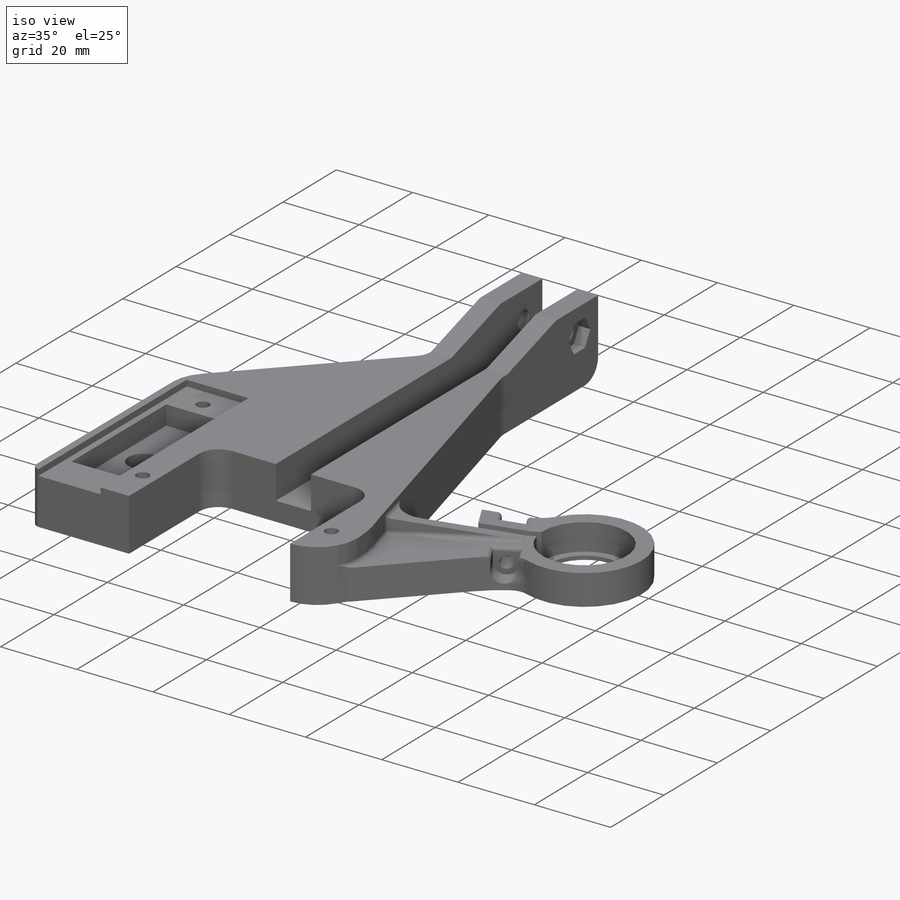
[diagram: iso view]
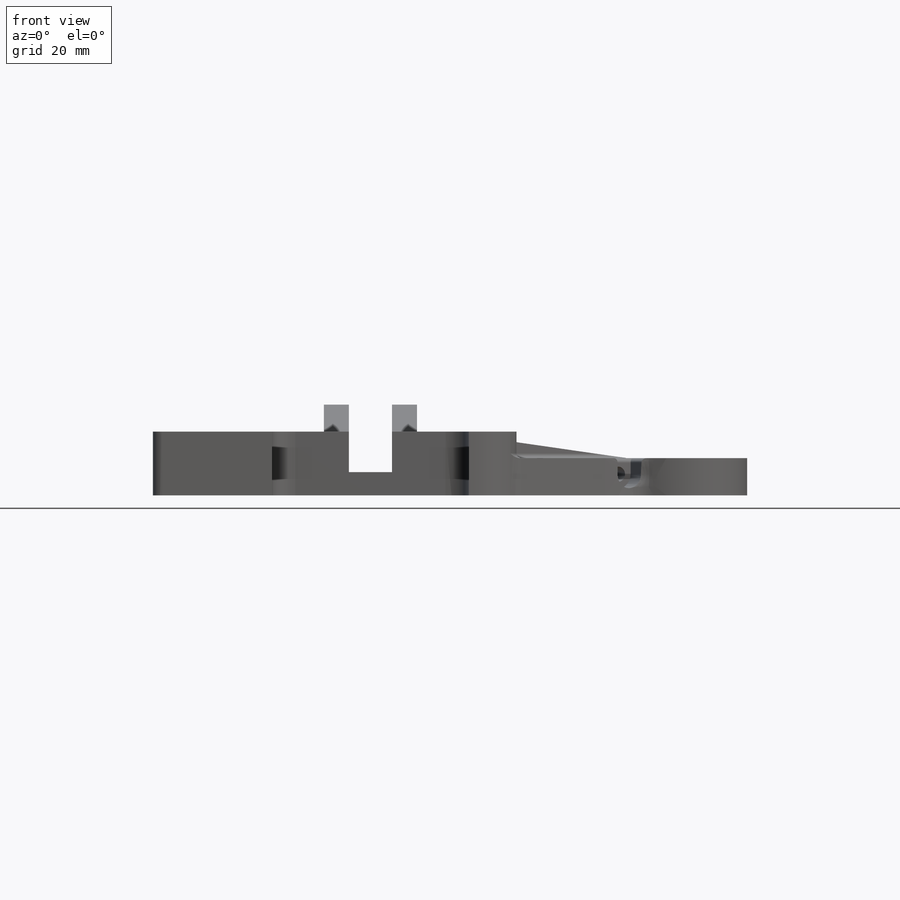
[diagram: front view]
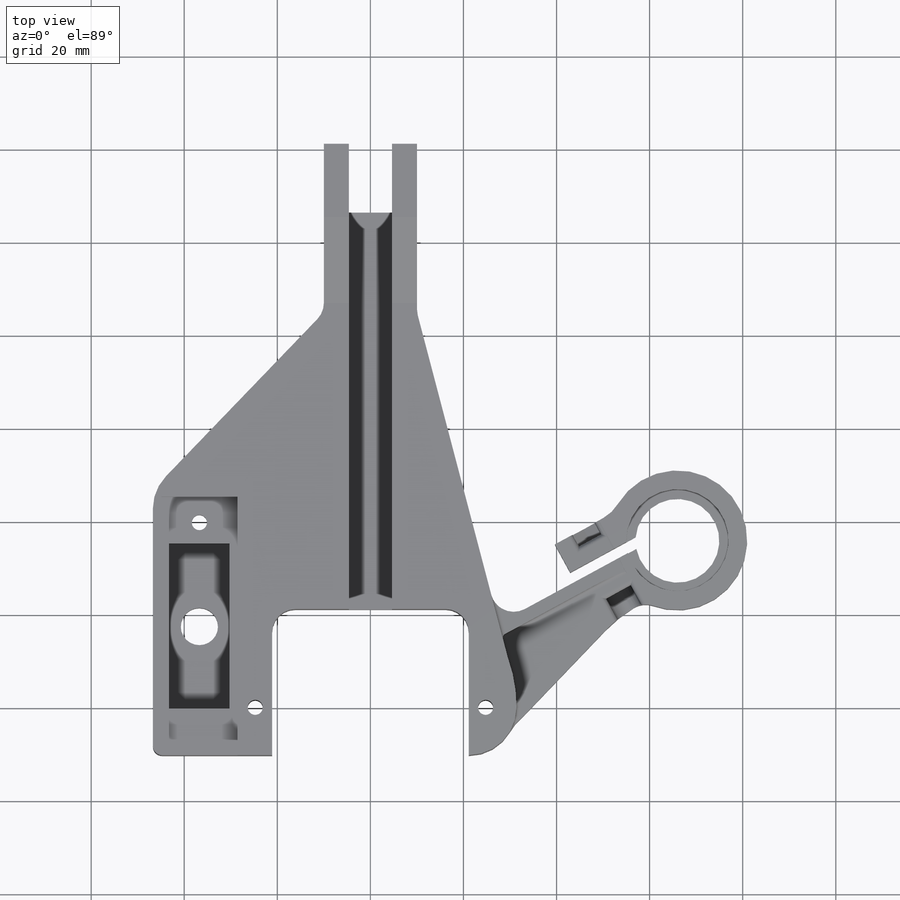
[diagram: top view]
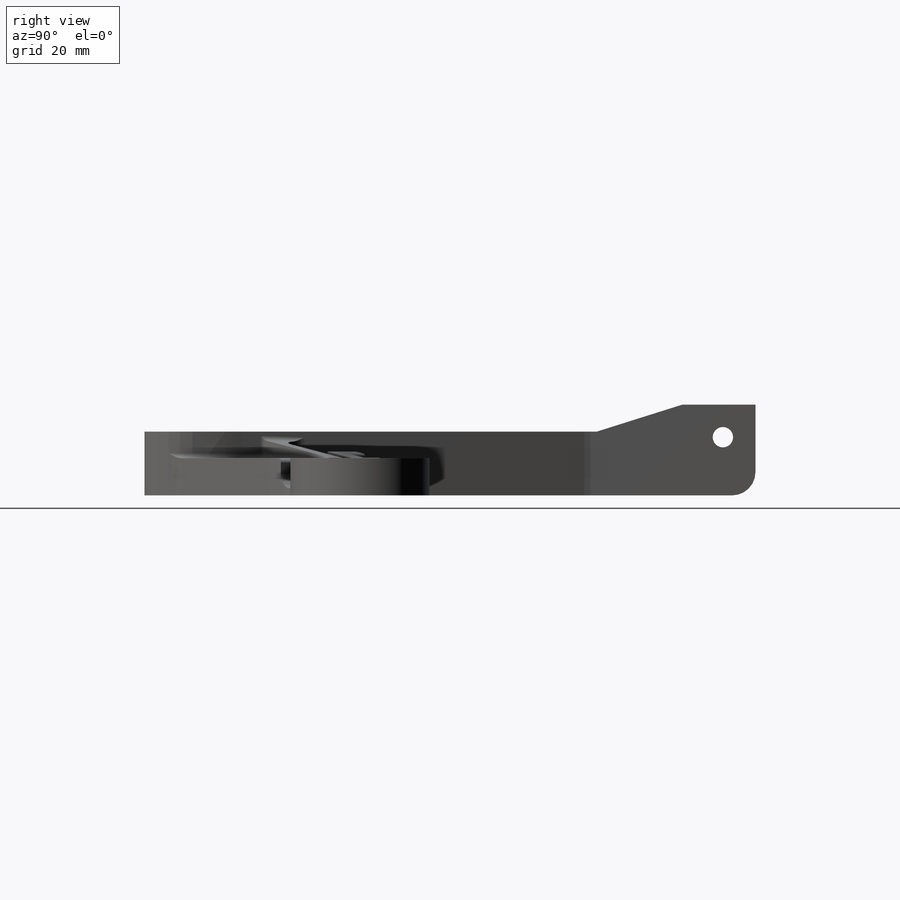
[diagram: right view]
SOLIDWORKS PART (.sldprt)
format: sldprt  version: not decoded by parser v0  size: 4,821,504 bytes
history: native  units: mm
features: sketch x168, cut_extrude x89, extrude x70, fillet x25, chamfer x9, plane x7, mirror x3, pattern_linear x2, material x1 (+13 scaffold rows collapsed)
feature tree (387):
  scaffold x13  (default folders/planes/origin — collapsed)
  material  "Material <not specified>"
  sketch  "Sketch1"  dims[c1.D1=56.8mm c1.D5=100.0mm c1.D2=~63.041403mm c1.D3=~63.864398mm c2.D2=57.0mm c2.D3=57.0mm c2.D4=10.0mm]
  extrude  "Boss-Extrude1"  Depth=2mm
  sketch  "Sketch2"  dims[c1.D1=~57.791593mm c1.D2=~56.321357mm c2.D1=57.0mm c2.D2=57.0mm c2.D3=0.0mm]
  extrude  "Boss-Extrude2"  Depth=2mm
  sketch  "Sketch3"  dims[c1.D1=5.5mm c1.D2=5.5mm c1.D4=~4.235811mm c1.D5=~4.235811mm c1.D6=5.5mm c1.D7=5.5mm c1.D8=5.5mm c1.D9=5.5mm c1.D10=5.5mm c1.D11=5.5mm c1.D12=5.5mm c2.D2=5.0mm c2.D3=5.0mm c2.D4=5.0mm c2.D5=5.0mm c2.D8=5.0mm c2.D9=5.0mm c2.D11=5.0mm c2.D12=5.0mm]
  cut_extrude  "Cut-Extrude1"  [1 undecoded]
  sketch  "Sketch4"  dims[c1.D1=~4.158256mm c1.D2=~12.21427mm c2.D1=5.0mm c2.D2=10.0mm c2.D3=~17.851258mm]
  cut_extrude  "Cut-Extrude2"  [1 undecoded]
  sketch  "Sketch5"  dims[c1.D1=100.0mm c1.D2=114.3mm c2.D1=~10.372506mm c2.D3=125.0mm]
  sketch  "Sketch6"  dims[D1=4.625mm D2=5.38mm D3=15.0mm D4=~47.143267mm D5=~114.296535mm D6=10.0mm]
  extrude  "Boss-Extrude3"  Depth=19.5mm
  sketch  "Sketch7"  dims[c1.D1=~5.171546mm c1.D2=~5.171546mm c1.D3=4.38mm c2.D1=12.5mm c2.D2=7.0mm]
  cut_extrude  "Cut-Extrude3"  [1 undecoded]
  sketch  "Sketch8"  dims[D1=7.13mm]
  cut_extrude  "Cut-Extrude4"  Depth=3mm
  sketch  "Sketch9"  dims[D1=6.7mm]
  cut_extrude  "Cut-Extrude5"  Depth=3mm
  fillet  "Fillet1"  Radius=5mm
  plane  "Plane1"  Offset=45mm
  sketch  "Sketch10"  dims[D1=0.0mm D2=0.0mm D3=0.0mm D4=0.0mm D5=0.0mm D6=0.0mm]
  sketch  "Sketch12"  dims[D1=0.0mm]
  cut_extrude  "Cut-Extrude6"  Depth=3mm
  sketch  "Sketch13"  dims[D1=~24.068737mm]
  sketch  "Sketch14"  dims[D2=5.5mm D3=5.5mm D4=5.5mm D5=6.75mm D1=0.0mm]
  extrude  "Boss-Extrude4"  Depth=3mm
  sketch  "Sketch15"
  extrude  "Boss-Extrude5"  Depth=3mm
  sketch  "Sketch16"  dims[D1=69.8mm]
  sketch  "Sketch17"  dims[D1=~29.299301mm D2=~102.533477mm]
  cut_extrude  "Cut-Extrude7"  Depth=45mm
  sketch  "Sketch18"  dims[c1.D3=~6.678894mm c1.D2=7.5mm c1.D4=28.4mm c1.D1=15.0mm c2.D2=~33.234019mm c2.D3=~5.842232mm c2.D5=15.0mm c2.D6=4.0]
  extrude  "Boss-Extrude9"  Depth=42mm
  fillet  "Fillet2"  Radius=10mm
  sketch  "Sketch19"  dims[D1=10.0mm]
  extrude  "Boss-Extrude10"  [1 undecoded]
  sketch  "Sketch20"  dims[D1=0.0mm D2=0.0mm]
  cut_extrude  "Cut-Extrude8"  [1 undecoded]
  sketch  "Sketch21"  dims[c1.D1=10.0mm c1.D2=10.0mm c1.D3=~8.09568mm c1.D4=~11.358339mm c2.D3=~6.043986mm c2.D5=~66.945024mm c3.D5=~21.622725deg c3.D3=10.0mm c3.D4=10.0mm]
  cut_extrude  "Cut-Extrude9"  Depth=42mm
  sketch  "Sketch22"  dims[c1.D1=56.8mm c1.D3=56.8mm c1.D2=~19.791948mm c2.D2=~65.704305deg c2.D1=5.0mm]
  extrude  "Boss-Extrude11"  Depth=5mm
  sketch  "Sketch23"  dims[c1.D1=5.0mm c1.D2=5.0mm c2.D1=5.0mm c2.D2=5.0mm c2.D3=5.0mm]
  cut_extrude  "Cut-Extrude10"  [1 undecoded]
  sketch  "Sketch24"  dims[c1.D6=33.4mm c1.D8=33.4mm c1.D1=~85.487345mm c2.D1=45.0deg c2.D2=~2.796269mm c2.D3=8.5mm c2.D4=5.0mm c2.D5=~13.056691mm c2.D7=7.5mm c2.D8=~33.97112mm c2.D9=~3.844393mm c2.D10=~9.232475mm c3.D10=135.0deg c3.D11=~4.169841mm c3.D1=~8.056691mm c4.D1=45.0deg c4.D2=5.0mm c4.D3=~8.056691mm c5.D2=1.0mm]
  extrude  "Boss-Extrude12"  [1 undecoded]
  sketch  "Sketch25"  dims[c1.D4=1.625mm c1.D2=3.25mm c1.D3=20.0mm c2.D4=20.0mm c2.D1=0.0mm]
  cut_extrude  "Cut-Extrude11"  [1 undecoded]
  sketch  "Sketch26"  dims[D1=5.0mm]
  extrude  "Boss-Extrude13"  Depth=2mm
  sketch  "Sketch27"  dims[D1=0.0mm]
  extrude  "Boss-Extrude14"  Depth=2mm
  sketch  "Sketch28"  dims[D1=0.0mm]
  cut_extrude  "Cut-Extrude12"  Depth=2mm
  sketch  "Sketch29"  dims[D1=0.0mm]
  extrude  "Boss-Extrude15"  [1 undecoded]
  sketch  "Sketch30"  dims[D1=0.0mm D2=0.0mm]
  extrude  "Boss-Extrude16"  [1 undecoded]
  sketch  "Sketch31"  dims[c1.D1=5.0mm c1.D2=5.0mm c2.D1=10.0mm]
  extrude  "Boss-Extrude17"  [1 undecoded]
  sketch  "Sketch32"  dims[D1=~35.173935mm D2=~181.231273mm]
  cut_extrude  "Cut-Extrude13"  Depth=10mm
  sketch  "Sketch33"  dims[c1.D1=~6.752159mm c1.D2=~13.400455mm c2.D1=1.5mm c2.D2=1.5mm]
  cut_extrude  "Cut-Extrude14"  [1 undecoded]
  sketch  "Sketch34"  dims[c1.D1=~10.172356mm c1.D2=~12.301049mm c2.D1=~17.607699mm c2.D2=~9.796867mm]
  extrude  "Boss-Extrude18"  [1 undecoded]
  sketch  "Sketch35"  dims[D1=5.0mm D2=5.0mm]
  extrude  "Boss-Extrude19"  [1 undecoded]
  sketch  "Sketch36"  dims[D1=3.25mm]
  extrude  "Boss-Extrude20"  [1 undecoded]
  sketch  "Sketch37"  dims[D1=1.5mm D2=1.5mm D3=1.5mm D4=1.5mm]
  cut_extrude  "Cut-Extrude15"  Depth=10mm
  chamfer  "Chamfer1"  Distance=1.5mm Angle=45deg
  sketch  "Sketch38"  dims[c1.D4=10.0mm c1.D5=8.0mm c1.D1=~34.54848mm c2.D1=45.0deg c2.D5=10.0mm c2.D6=10.0mm c2.D2=7.5mm c2.D3=7.5mm]
  extrude  "Boss-Extrude21"  [1 undecoded]
  sketch  "Sketch39"  dims[D1=12.75mm]
  cut_extrude  "Cut-Extrude16"  Depth=5mm
  sketch  "Sketch40"  dims[c1.D1=3.0mm c1.D3=~71.309462mm c1.D4=77.0mm c2.D3=~74.05391mm c2.D4=~81.274208mm c2.D2=5.0mm]
  cut_extrude  "Cut-Extrude17"  [1 undecoded]
  sketch  "Sketch41"  dims[D1=~23.355905mm D2=13.0mm]
  cut_extrude  "Cut-Extrude18"  [1 undecoded]
  sketch  "Sketch42"  dims[D1=~60.213936mm]
  extrude  "Boss-Extrude22"  [1 undecoded]
  sketch  "Sketch43"  dims[D1=0.0mm D2=0.0mm]
  extrude  "Boss-Extrude23"  Depth=5mm
  sketch  "Sketch46"  dims[c1.D1=~11.964372mm c1.D2=13.0mm c2.D1=5.0mm c2.D2=10.25mm c2.D3=3.0mm c3.D2=~2.984343mm]
  extrude  "Boss-Extrude24"  [1 undecoded]
  sketch  "Sketch44"  dims[D1=3.25mm]
  cut_extrude  "Cut-Extrude19"  [1 undecoded]
  sketch  "Sketch47"  dims[D1=6.0mm]
  cut_extrude  "Cut-Extrude20"  Depth=1mm
  sketch  "Sketch48"  dims[D1=5.65mm]
  cut_extrude  "Cut-Extrude21"  Depth=1mm
  fillet  "Fillet3"  Radius=5mm
  fillet  "Fillet4"  Radius=20mm
  sketch  "Sketch49"  dims[D1=~110.006866mm]
  cut_extrude  "Cut-Extrude22"  [1 undecoded]
  sketch  "Sketch50"  dims[D1=~100.249902mm]
  cut_extrude  "Cut-Extrude23"  [1 undecoded]
  sketch  "Sketch52"  dims[D3=~7.14427mm D1=0.0mm D2=0.0mm]
  extrude  "Boss-Extrude25"  [1 undecoded]
  plane  "Plane2"  Offset=10mm
  sketch  "Sketch53"  dims[D1=~21.378949mm]
  extrude  "Boss-Extrude26"  Depth=5mm
  fillet  "Fillet5"  Radius=14mm
  sketch  "Sketch54"  dims[D2=~67.802345mm D3=~42.597424mm D1=1.0mm]
  cut_extrude  "Cut-Extrude24"  [1 undecoded]
  sketch  "Sketch57"  dims[D1=2.69mm D2=2.69mm]
  extrude  "Boss-Extrude29"  [1 undecoded]
  sketch  "Sketch58"  dims[c1.D3=30.0mm c1.D1=~16.965701mm c2.D1=~9.643539deg c2.D2=~30.048959mm c3.D2=~26.259854deg]
  extrude  "Boss-Extrude30"  Depth=5mm
  fillet  "Fillet11"  Radius=14mm
  sketch  "Sketch59"  dims[D1=~3.46625mm]
  cut_extrude  "Cut-Extrude25"  Depth=2mm
  sketch  "Sketch60"  dims[c1.D4=3.0mm c1.D6=8.0mm c1.D1=25.0mm c1.D2=41.5mm c2.D1=41.5mm c2.D2=25.0mm c2.D3=20.0mm c2.D4=49.5mm c2.D5=24.75mm c2.D6=~18.610132mm c3.D3=1.0mm]
  sketch  "Sketch61"
  cut_extrude  "Cut-Extrude26"  Depth=1.6mm
  sketch  "Sketch62"  dims[D1=~14.486213mm]
  extrude  "Boss-Extrude31"  [1 undecoded]
  sketch  "Sketch63"
  cut_extrude  "Cut-Extrude27"  Depth=16mm
  sketch  "Sketch64"  dims[D1=0.0mm]
  cut_extrude  "Cut-Extrude28"  Depth=1.5mm
  sketch  "Sketch65"  dims[D1=0.0mm]
  cut_extrude  "Cut-Extrude29"  Depth=1.5mm
  sketch  "Sketch66"  dims[D1=0.0mm D2=0.0mm]
  extrude  "Boss-Extrude32"  [1 undecoded]
  sketch  "Sketch67"  dims[D1=0.0mm D2=0.0mm]
  extrude  "Boss-Extrude33"  [1 undecoded]
  sketch  "Sketch68"  dims[D1=0.0mm]
  cut_extrude  "Cut-Extrude30"  [1 undecoded]
  sketch  "Sketch69"  dims[c1.D5=8.0mm c1.D3=4.0mm c1.D4=4.0mm c1.D2=5.0mm c1.D8=5.0mm c1.D9=5.0mm c1.D1=~41.862394mm c2.D2=~44.075339mm c2.D1=49.5mm c3.D2=23.0mm c3.D3=~54.374654mm c3.D1=46.5mm c4.D2=27.5mm c4.D1=24.75mm c4.D7=24.75mm c4.D3=4.0mm c4.D4=4.0mm c4.D5=10.0mm c4.D6=1.5mm]
  extrude  "Boss-Extrude34"  [1 undecoded]
  sketch  "Sketch70"  dims[D1=3.0mm]
  sketch  "Sketch71"  dims[c1.D1=8.0mm c1.D4=4.0mm c1.D5=4.0mm c2.D1=8.0mm c2.D2=8.0mm c3.D1=8.0mm c3.D2=8.0mm c4.D1=8.0mm c4.D2=8.0mm c4.D3=8.0mm]
  cut_extrude  "Cut-Extrude32"  Depth=1.6mm
  sketch  "Sketch72"  dims[D1=3.0mm]
  extrude  "Boss-Extrude35"  [1 undecoded]
  sketch  "Sketch73"  dims[c1.D1=55.1183mm c1.D2=20.01mm c2.D1=~3.994407mm]
  cut_extrude  "Cut-Extrude33"  [1 undecoded]
  sketch  "Sketch74"  dims[D1=~40.563324mm]
  cut_extrude  "Cut-Extrude34"  [1 undecoded]
  sketch  "Sketch75"  dims[D2=0.75mm D1=0.75mm]
  extrude  "Boss-Extrude36"  [1 undecoded]
  chamfer  "Chamfer2"  Distance=5mm Angle=45deg
  sketch  "Sketch76"  dims[D4=~2.303098mm D1=0.75mm D2=0.75mm D3=0.75mm]
  extrude  "Boss-Extrude37"  Depth=7mm
  sketch  "Sketch77"  dims[D2=~8.651339mm D1=0.75mm]
  extrude  "Boss-Extrude38"  [1 undecoded]
  chamfer  "Chamfer3"  Distance=5mm Angle=45deg
  sketch  "Sketch78"  dims[D1=0.75mm]
  extrude  "Boss-Extrude39"  [1 undecoded]
  sketch  "Sketch79"  dims[D1=2.0mm]
  extrude  "Boss-Extrude40"  [1 undecoded]
  sketch  "Sketch80"  dims[D1=22.0mm]
  cut_extrude  "Cut-Extrude35"  [1 undecoded]
  sketch  "Sketch81"  dims[D1=~1.307116mm]
  cut_extrude  "Cut-Extrude36"  [1 undecoded]
  sketch  "Sketch82"  dims[D1=2.0mm]
  extrude  "Boss-Extrude41"  Depth=10.5mm
  chamfer  "Chamfer4"  Distance=2mm Angle=30deg
  sketch  "Sketch83"  dims[D1=~28.905686mm]
  cut_extrude  "Cut-Extrude37"  Depth=20mm
  sketch  "Sketch84"  dims[D1=5.38mm]
  cut_extrude  "Cut-Extrude38"  Depth=2.5mm
  sketch  "Sketch85"  dims[D1=~31.145384mm]
  cut_extrude  "Cut-Extrude39"  [1 undecoded]
  sketch  "Sketch86"  dims[D1=~7.401908mm D2=~39.85394mm]
  cut_extrude  "Cut-Extrude40"  [1 undecoded]
  sketch  "Sketch87"  dims[D1=~25.784544mm]
  cut_extrude  "Cut-Extrude41"  Depth=20mm
  sketch  "Sketch88"  dims[D1=0.0mm]
  extrude  "Boss-Extrude42"  [1 undecoded]
  sketch  "Sketch89"  dims[D1=0.0mm]
  extrude  "Boss-Extrude43"  [1 undecoded]
  sketch  "Sketch90"  dims[D1=0.0mm]
  cut_extrude  "Cut-Extrude42"  Depth=7mm
  sketch  "Sketch91"  dims[D1=0.0mm]
  cut_extrude  "Cut-Extrude43"  [1 undecoded]
  plane  "Plane3"  Offset=8mm
  sketch  "Sketch92"
  cut_extrude  "Cut-Extrude44"  Depth=10mm
  sketch  "Sketch96"  dims[c1.D1=~4.156302mm c1.D2=~8.611064mm c2.D1=~2.798864mm]
  extrude  "Boss-Extrude45"  [1 undecoded]
  sketch  "Sketch97"  dims[D2=~2.248637mm D1=0.0mm]
  cut_extrude  "Cut-Extrude45"  Depth=10mm
  sketch  "Sketch98"  dims[D2=~32.419669mm D1=0.0mm]
  cut_extrude  "Cut-Extrude46"  [1 undecoded]
  fillet  "Fillet12"  Radius=10mm
  sketch  "Sketch101"  dims[D1=0.0mm]
  extrude  "Boss-Extrude46"  [1 undecoded]
  sketch  "Sketch102"  dims[D1=0.0mm]
  cut_extrude  "Cut-Extrude47"  [1 undecoded]
  sketch  "Sketch103"  dims[D1=0.0mm]
  cut_extrude  "Cut-Extrude48"  [1 undecoded]
  sketch  "Sketch104"  dims[D1=0.0mm]
  cut_extrude  "Cut-Extrude49"  Depth=10mm
  sketch  "Sketch105"  dims[D1=0.0mm]
  cut_extrude  "Cut-Extrude50"  [1 undecoded]
  sketch  "Sketch108"  dims[D1=0.0mm]
  extrude  "Boss-Extrude47"  Depth=2mm
  sketch  "Sketch109"  dims[D1=2.0mm]
  extrude  "Boss-Extrude52"  Depth=1mm
  plane  "Plane4"  Offset=10mm
  sketch  "Sketch112"  dims[D3=~8.052558mm D1=0.0mm D2=0.0mm]
  cut_extrude  "Cut-Extrude57"  [1 undecoded]
  sketch  "Sketch113"  dims[D2=~2.044276mm D1=0.0mm]
  extrude  "Boss-Extrude50"  [1 undecoded]
  sketch  "Sketch114"  dims[D1=0.0mm]
  cut_extrude  "Cut-Extrude58"  [1 undecoded]
  sketch  "Sketch118"
  sketch  "Sketch120"  dims[D1=0.0mm]
  cut_extrude  "Cut-Extrude62"  [1 undecoded]
  sketch  "Sketch123"  dims[c1.D1=3.0mm c1.D2=3.0mm c2.D1=~4.554448mm c2.D2=4.55mm]
  cut_extrude  "Cut-Extrude64"  [1 undecoded]
  sketch  "Sketch124"  dims[D1=5.45mm]
  cut_extrude  "Cut-Extrude65"  Depth=2.5mm
  sketch  "Sketch126"  dims[D1=6.25mm]
  cut_extrude  "Cut-Extrude66"  Depth=5mm
  sketch  "Sketch127"  dims[D2=~5.129336mm D1=0.0mm]
  extrude  "Boss-Extrude53"  [1 undecoded]
  sketch  "Sketch128"
  cut_extrude  "Cut-Extrude67"  [1 undecoded]
  sketch  "Sketch129"  dims[D1=0.0mm]
  extrude  "Boss-Extrude54"  [1 undecoded]
  sketch  "Sketch130"
  extrude  "Boss-Extrude55"  [1 undecoded]
  sketch  "Sketch131"
  cut_extrude  "Cut-Extrude68"  [1 undecoded]
  sketch  "Sketch132"  dims[D1=42.25mm D2=42.25mm]
  cut_extrude  "Cut-Extrude69"  [1 undecoded]
  sketch  "Sketch133"  dims[D1=0.0mm]
  cut_extrude  "Cut-Extrude70"  [1 undecoded]
  sketch  "Sketch134"
  cut_extrude  "Cut-Extrude71"  [1 undecoded]
  sketch  "Sketch135"
  cut_extrude  "Cut-Extrude72"  Depth=10mm
  sketch  "Sketch136"
  extrude  "Boss-Extrude56"  [1 undecoded]
  fillet  "Fillet13"  Radius=5mm
  fillet  "Fillet14"  Radius=5mm
  sketch  "Sketch137"
  extrude  "Boss-Extrude57"  [1 undecoded]
  fillet  "Fillet15"  Radius=10mm
  fillet  "Fillet16"  Radius=10mm
  sketch  "Sketch138"
  extrude  "Boss-Extrude58"  [1 undecoded]
  sketch  "Sketch139"
  cut_extrude  "Cut-Extrude73"  [1 undecoded]
  sketch  "Sketch140"  dims[c1.D2=~3.138708mm c1.D3=3.25mm c1.D4=3.25mm c1.D1=24.75mm c2.D2=24.75mm]
  cut_extrude  "Cut-Extrude74"  [1 undecoded]
  sketch  "Sketch142"  dims[D1=8.0mm D2=8.0mm]
  cut_extrude  "Cut-Extrude75"  Depth=1.6mm
  sketch  "Sketch143"
  extrude  "Boss-Extrude59"  [1 undecoded]
  sketch  "Sketch144"
  extrude  "Boss-Extrude60"  [1 undecoded]
  sketch  "Sketch145"  dims[D1=0.0mm]
  extrude  "Boss-Extrude61"  Depth=1.7mm
  sketch  "Sketch146"
  extrude  "Boss-Extrude62"  Depth=1.7mm
  sketch  "Sketch147"  dims[D1=0.0mm]
  cut_extrude  "Cut-Extrude76"  Depth=1.7mm
  sketch  "Sketch149"  dims[D1=0.0mm]
  extrude  "Boss-Extrude63"  [1 undecoded]
  sketch  "Sketch148"
  cut_extrude  "Cut-Extrude77"  Depth=1.7mm
  sketch  "Sketch150"  dims[D1=0.0mm]
  extrude  "Boss-Extrude64"  [1 undecoded]
  sketch  "Sketch151"  dims[D1=0.0mm]
  cut_extrude  "Cut-Extrude78"  [1 undecoded]
  sketch  "Sketch153"  dims[D1=0.125mm]
  extrude  "Boss-Extrude65"  [1 undecoded]
  sketch  "Sketch155"
  extrude  "Boss-Extrude66"  [1 undecoded]
  sketch  "Sketch156"
  extrude  "Boss-Extrude67"  [1 undecoded]
  sketch  "Sketch157"
  cut_extrude  "Cut-Extrude79"  [1 undecoded]
  plane  "Plane5"  Offset=50mm
  mirror  "Mirror2"
  sketch  "Sketch158"
  cut_extrude  "Cut-Extrude80"  Depth=10mm
  sketch  "Sketch159"  dims[D1=100.0mm D2=114.3mm D3=~7.299419mm]
  sketch  "Sketch160"
  extrude  "Boss-Extrude68"  [1 undecoded]
  sketch  "Sketch161"  dims[D1=20.0mm]
  cut_extrude  "Cut-Extrude81"  [1 undecoded]
  pattern_linear  "LPattern1"  Count1=2 Count2=1 Spacing1=30mm Spacing2=10mm
  sketch  "Sketch162"
  cut_extrude  "Cut-Extrude82"  [1 undecoded]
  pattern_linear  "LPattern3"  Count1=2 Count2=1 Spacing1=49mm Spacing2=10mm
  sketch  "Sketch163"  dims[D1=0.0mm]
  extrude  "Boss-Extrude69"  Depth=10mm
  sketch  "Sketch164"
  cut_extrude  "Cut-Extrude83"  [1 undecoded]
  sketch  "Sketch165"  dims[D3=3.0mm D1=16.0mm D2=55.0mm D4=8.0mm D5=5.0mm]
  sketch  "Sketch166"
  extrude  "Boss-Extrude70"  [1 undecoded]
  sketch  "Sketch167"  dims[D1=2.0mm D2=2.0mm]
  extrude  "Boss-Extrude71"  [1 undecoded]
  fillet  "Fillet17"  Radius=10mm
  fillet  "Fillet18"  Radius=2mm
  sketch  "Sketch168"  dims[D1=0.5mm]
  cut_extrude  "Cut-Extrude84"  Depth=1.6mm
  sketch  "Sketch169"  dims[D1=10.0mm D2=10.0mm D3=2.0mm D4=2.0mm]
  cut_extrude  "Cut-Extrude85"  Depth=5mm
  sketch  "Sketch170"  dims[D1=3.25mm]
  cut_extrude  "Cut-Extrude86"  [1 undecoded]
  sketch  "Sketch171"  dims[D1=5.5mm]
  cut_extrude  "Cut-Extrude87"  Depth=3.5mm
  chamfer  "Chamfer7"  Distance=2mm Angle=45deg
  fillet  "Fillet19"  Radius=5mm
  plane  "Plane6"  Offset=10mm
  mirror  "Mirror4"
  sketch  "Sketch172"
  cut_extrude  "Cut-Extrude88"  [1 undecoded]
  sketch  "Sketch174"
  cut_extrude  "Cut-Extrude89"  [1 undecoded]
  sketch  "Sketch175"  dims[D1=0.0mm D2=0.0mm]
  extrude  "Boss-Extrude72"  [1 undecoded]
  sketch  "Sketch176"  dims[D1=0.0mm]
  cut_extrude  "Cut-Extrude90"  Depth=6mm
  chamfer  "Chamfer8"  Distance=2mm Angle=60deg
  sketch  "Sketch177"  dims[D1=8.0mm]
  cut_extrude  "Cut-Extrude91"  [1 undecoded]
  sketch  "Sketch178"  dims[D1=0.375mm D2=0.375mm]
  extrude  "Boss-Extrude73"  [1 undecoded]
  chamfer  "Chamfer9"  Distance=2mm Angle=45deg
  sketch  "Sketch179"  dims[D1=0.125mm]
  cut_extrude  "Cut-Extrude92"  [1 undecoded]
  sketch  "Sketch180"  dims[D1=2.0mm]
  extrude  "Boss-Extrude74"  [1 undecoded]
  sketch  "Sketch181"
  cut_extrude  "Cut-Extrude93"  Depth=10mm
  sketch  "Sketch182"
  extrude  "Boss-Extrude75"  [1 undecoded]
  fillet  "Fillet20"  Radius=5mm
  sketch  "Sketch183"
  cut_extrude  "Cut-Extrude94"  Depth=10mm
  fillet  "Fillet21"  Radius=1mm
  fillet  "Fillet22"  Radius=1mm
  sketch  "Sketch184"
  extrude  "Boss-Extrude76"  [1 undecoded]
  sketch  "Sketch186"
  cut_extrude  "Cut-Extrude96"  Depth=10mm
  sketch  "Sketch187"  dims[D1=0.0mm]
  cut_extrude  "Cut-Extrude97"  [1 undecoded]
  sketch  "Sketch188"  dims[D1=5.45mm]
  cut_extrude  "Cut-Extrude98"  Depth=10mm
  fillet  "Fillet23"  Radius=1mm
  sketch  "Sketch189"  dims[D1=0.0mm]
  cut_extrude  "Cut-Extrude99"  Depth=2mm
  fillet  "Fillet24"  Radius=1mm
  sketch  "Sketch190"  dims[D1=0.0mm]
  extrude  "Boss-Extrude77"  Depth=1.5mm
  fillet  "Fillet25"  Radius=1mm
  plane  "Plane7"  Offset=10mm
  mirror  "Mirror5"
  sketch  "Sketch191"
  cut_extrude  "Cut-Extrude100"  Depth=10mm
  sketch  "Sketch110"  dims[D1=~1.69589mm]
  cut_extrude  "Cut-Extrude54"  [1 undecoded]
  chamfer  "Chamfer5"  Distance=2mm Angle=45deg
  chamfer  "Chamfer6"  Distance=2mm Angle=45deg
  sketch  "Sketch55"  dims[D1=~7.052698mm]
  extrude  "Boss-Extrude27"  [1 undecoded]
  sketch  "Sketch56"  dims[D1=~10.061168mm]
  extrude  "Boss-Extrude28"  Depth=5mm
  fillet  "Fillet6"  Radius=14mm
  fillet  "Fillet7"  Radius=19mm
  fillet  "Fillet8"  Radius=32mm
  fillet  "Fillet9"  Radius=9mm
  fillet  "Fillet10"  Radius=14mm
decode coverage: 232 of 366 modeling features carry decoded parameters
note: ~ marks probable driven/reference dimensions
note: 97 parameter values undecoded
summary: no parameter record found for 97 features
note: suppression state not decoded; provenance and decode notes live in map.json
